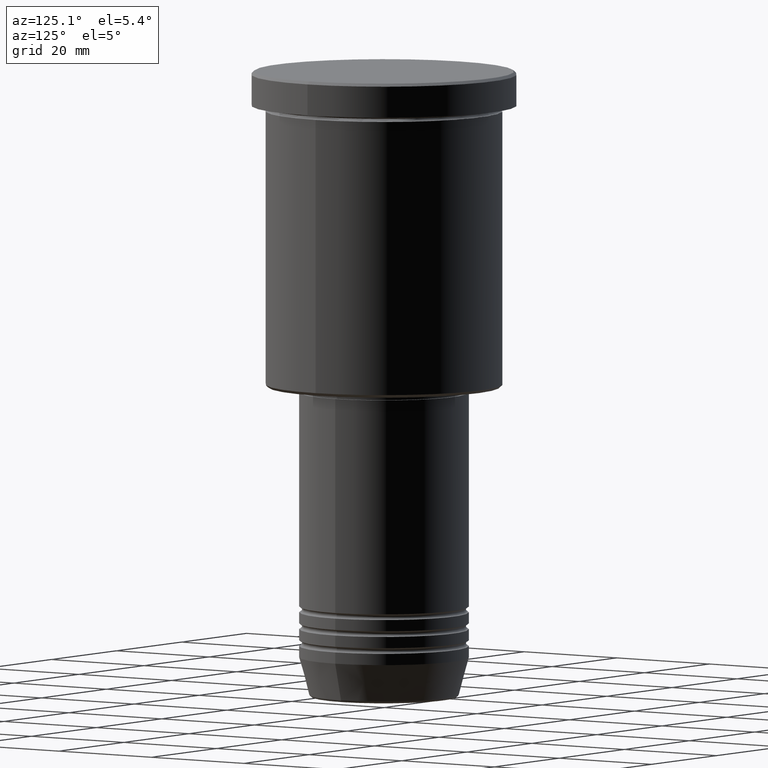
[diagram: clean part render]
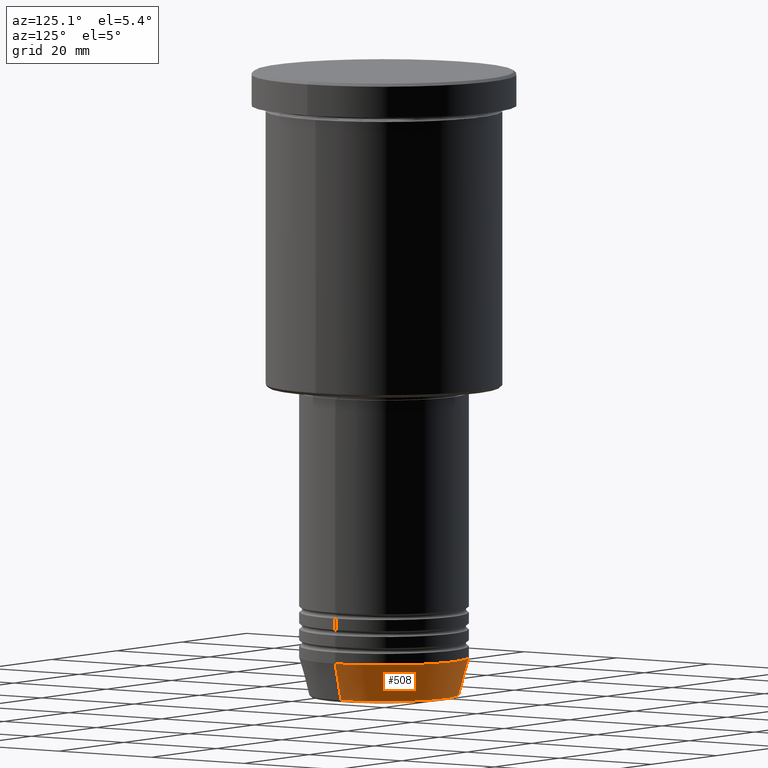
[diagram: same view with one face highlighted and labeled with its STEP entity id]
A machine part, auxiliary view. The second image highlights one B-rep face of the part: STEP entity #508.
In plain terms, the highlighted conical surface has half-angle 15 deg.
Its self-contained STEP definition (entity closure, byte-faithful):
#14 = CARTESIAN_POINT ( 'NONE',  ( -13.22365507213718949, 1.728200442216588386E-15, -110.6294095225512564 ) ) ;
#142 = DIRECTION ( 'NONE',  ( -0.000000000000000000, -0.000000000000000000, 1.000000000000000000 ) ) ;
#143 = ORIENTED_EDGE ( 'NONE', *, *, #304, .T. ) ;
#193 = VERTEX_POINT ( 'NONE', #867 ) ;
#194 = DIRECTION ( 'NONE',  ( -0.2588190451025213501, 3.169619151431772337E-17, 0.9659258262890680902 ) ) ;
#218 = CARTESIAN_POINT ( 'NONE',  ( -15.00000000000000000, 1.836970198721029589E-15, -104.0000000000000142 ) ) ;
#304 = EDGE_CURVE ( 'NONE', #879, #830, #465, .T. ) ;
#309 = LINE ( 'NONE', #404, #798 ) ;
#319 = DIRECTION ( 'NONE',  ( -0.000000000000000000, -0.000000000000000000, 1.000000000000000000 ) ) ;
#336 = DIRECTION ( 'NONE',  ( 1.000000000000000000, 0.000000000000000000, 0.000000000000000000 ) ) ;
#366 = DIRECTION ( 'NONE',  ( -0.000000000000000000, -0.000000000000000000, 1.000000000000000000 ) ) ;
#375 = CIRCLE ( 'NONE', #1164, 15.00000000000000000 ) ;
#390 = DIRECTION ( 'NONE',  ( 1.000000000000000000, 0.000000000000000000, 0.000000000000000000 ) ) ;
#404 = CARTESIAN_POINT ( 'NONE',  ( 15.00000000000000000, 0.000000000000000000, -104.0000000000000142 ) ) ;
#409 = FACE_OUTER_BOUND ( 'NONE', #795, .T. ) ;
#410 = EDGE_CURVE ( 'NONE', #800, #879, #1040, .T. ) ;
#438 = AXIS2_PLACEMENT_3D ( 'NONE', #1050, #142, #390 ) ;
#461 = DIRECTION ( 'NONE',  ( 1.000000000000000000, 0.000000000000000000, 0.000000000000000000 ) ) ;
#465 = LINE ( 'NONE', #822, #738 ) ;
#508 = ADVANCED_FACE ( 'NONE', ( #409 ), #579, .T. ) ;
#547 = EDGE_CURVE ( 'NONE', #193, #830, #375, .T. ) ;
#579 = CONICAL_SURFACE ( 'NONE', #438, 15.00000000000000000, 0.2617993877991500740 ) ;
#594 = CARTESIAN_POINT ( 'NONE',  ( 0.000000000000000000, 0.000000000000000000, -104.0000000000000142 ) ) ;
#738 = VECTOR ( 'NONE', #194, 1000.000000000000000 ) ;
#746 = ORIENTED_EDGE ( 'NONE', *, *, #824, .F. ) ;
#795 = EDGE_LOOP ( 'NONE', ( #1132, #143, #998, #746 ) ) ;
#798 = VECTOR ( 'NONE', #1038, 1000.000000000000000 ) ;
#800 = VERTEX_POINT ( 'NONE', #1052 ) ;
#822 = CARTESIAN_POINT ( 'NONE',  ( -15.00000000000000000, 1.836970198721029589E-15, -104.0000000000000142 ) ) ;
#824 = EDGE_CURVE ( 'NONE', #800, #193, #309, .T. ) ;
#830 = VERTEX_POINT ( 'NONE', #218 ) ;
#867 = CARTESIAN_POINT ( 'NONE',  ( 15.00000000000000000, 0.000000000000000000, -104.0000000000000142 ) ) ;
#879 = VERTEX_POINT ( 'NONE', #14 ) ;
#934 = CARTESIAN_POINT ( 'NONE',  ( 0.000000000000000000, 0.000000000000000000, -110.6294095225512564 ) ) ;
#998 = ORIENTED_EDGE ( 'NONE', *, *, #547, .F. ) ;
#1038 = DIRECTION ( 'NONE',  ( 0.2588190451025213501, 0.000000000000000000, 0.9659258262890680902 ) ) ;
#1040 = CIRCLE ( 'NONE', #1083, 13.22365507213718949 ) ;
#1050 = CARTESIAN_POINT ( 'NONE',  ( 0.000000000000000000, 0.000000000000000000, -104.0000000000000142 ) ) ;
#1052 = CARTESIAN_POINT ( 'NONE',  ( 13.22365507213718949, 0.000000000000000000, -110.6294095225512564 ) ) ;
#1083 = AXIS2_PLACEMENT_3D ( 'NONE', #934, #366, #461 ) ;
#1132 = ORIENTED_EDGE ( 'NONE', *, *, #410, .T. ) ;
#1164 = AXIS2_PLACEMENT_3D ( 'NONE', #594, #319, #336 ) ;